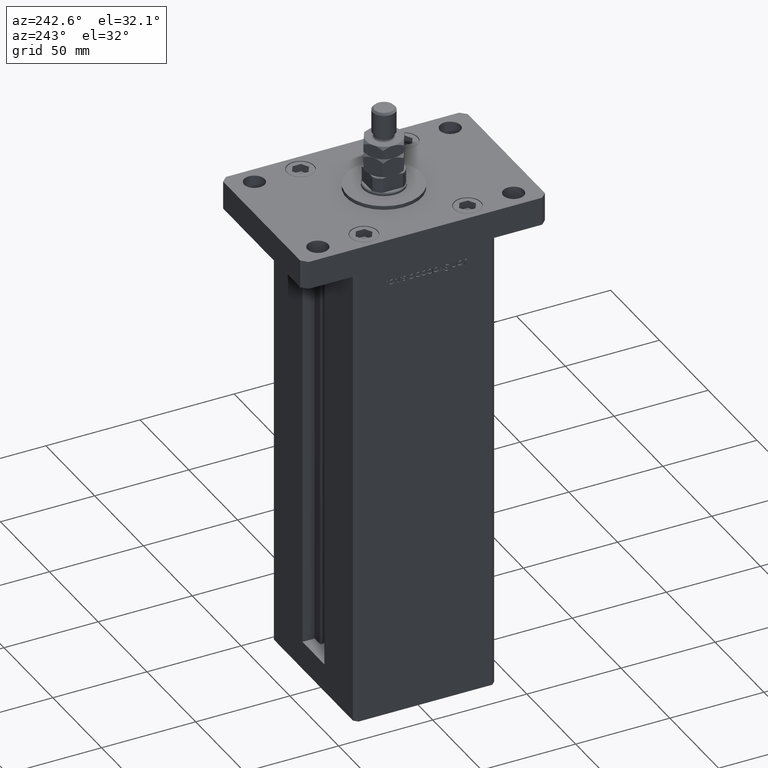
[diagram: clean part render]
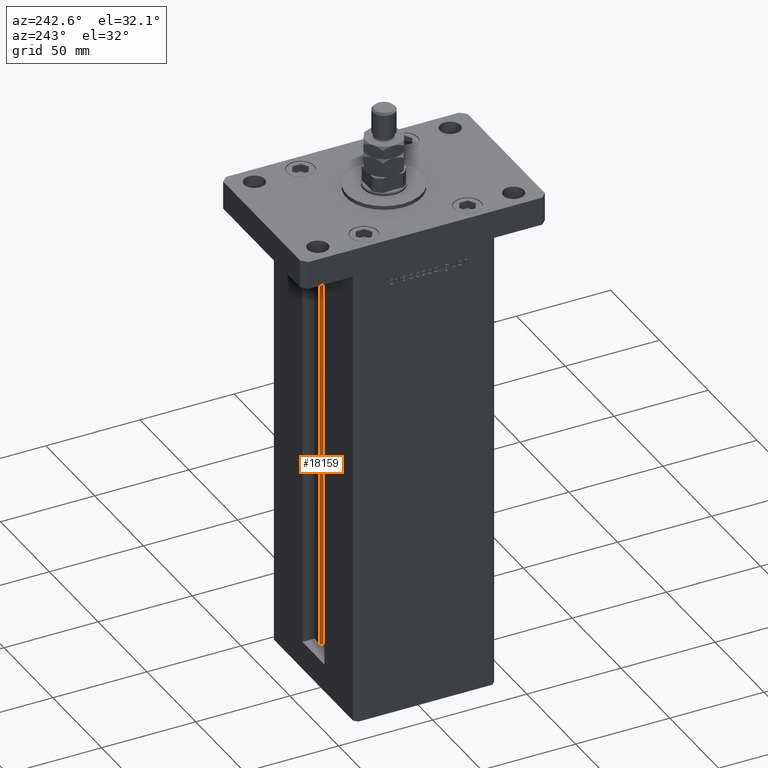
[diagram: same view with one face highlighted and labeled with its STEP entity id]
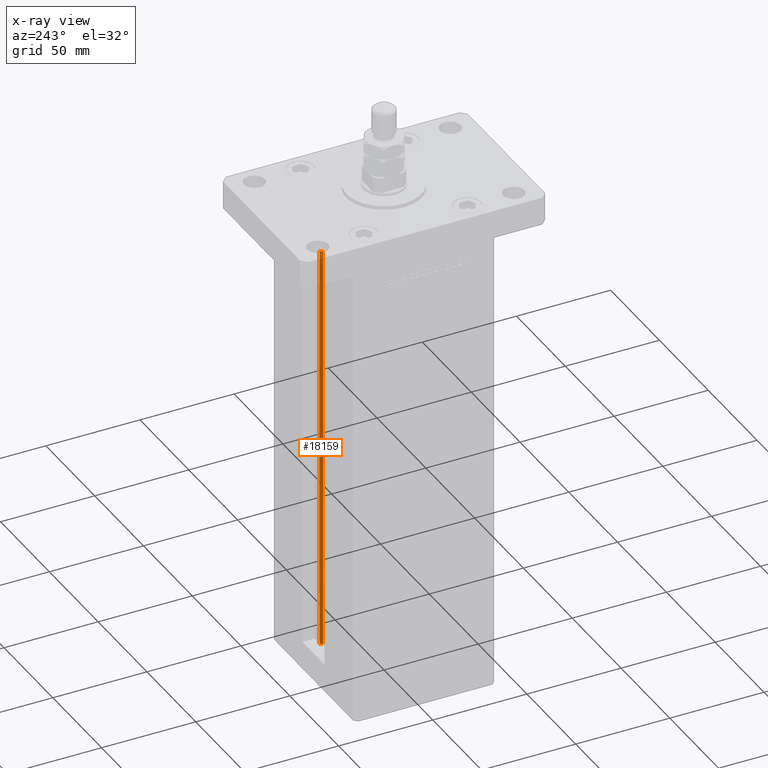
[diagram: x-ray of the same camera — body ghosted, the highlighted face saturated]
A machine part, auxiliary view. The second image highlights one B-rep face of the part: STEP entity #18159.
The next image is the same camera in x-ray: the body ghosted, the highlighted face saturated — about 9% of this face is hidden behind the body in this view.
In plain terms, the highlighted cylindrical surface (edge-blend (fillet) strip) has radius 0.9333 mm, axis along (0, 0, 1).
Its self-contained STEP definition (entity closure, byte-faithful):
#4753 = CARTESIAN_POINT ( 'NONE',  ( 6.183333333333999704, 30.99999999999999289, 218.5000000000000000 ) ) ;
#9036 = DIRECTION ( 'NONE',  ( 1.000000000000000000, 0.000000000000000000, 0.000000000000000000 ) ) ;
#9155 = VERTEX_POINT ( 'NONE', #4753 ) ;
#10059 = CIRCLE ( 'NONE', #33246, 0.9333333333340015914 ) ;
#12985 = FACE_OUTER_BOUND ( 'NONE', #33574, .T. ) ;
#13000 = DIRECTION ( 'NONE',  ( -0.000000000000000000, -0.000000000000000000, 1.000000000000000000 ) ) ;
#13753 = ORIENTED_EDGE ( 'NONE', *, *, #16031, .T. ) ;
#14898 = CARTESIAN_POINT ( 'NONE',  ( 5.375042956467944499, 29.59999999999899245, 218.5000000000000000 ) ) ;
#16031 = EDGE_CURVE ( 'NONE', #49284, #17561, #25077, .T. ) ;
#16146 = ORIENTED_EDGE ( 'NONE', *, *, #18964, .F. ) ;
#17561 = VERTEX_POINT ( 'NONE', #14898 ) ;
#18159 = ADVANCED_FACE ( 'NONE', ( #12985 ), #29987, .T. ) ;
#18964 = EDGE_CURVE ( 'NONE', #38871, #9155, #30554, .T. ) ;
#20906 = DIRECTION ( 'NONE',  ( -0.000000000000000000, -0.000000000000000000, 1.000000000000000000 ) ) ;
#21603 = DIRECTION ( 'NONE',  ( 0.000000000000000000, 0.000000000000000000, -1.000000000000000000 ) ) ;
#25077 = LINE ( 'NONE', #42077, #25746 ) ;
#25738 = ORIENTED_EDGE ( 'NONE', *, *, #42982, .T. ) ;
#25746 = VECTOR ( 'NONE', #20906, 1000.000000000000000 ) ;
#25808 = DIRECTION ( 'NONE',  ( 1.000000000000000000, 0.000000000000000000, 0.000000000000000000 ) ) ;
#26087 = CARTESIAN_POINT ( 'NONE',  ( 6.183333333333999704, 30.06666666666599141, 0.000000000000000000 ) ) ;
#26581 = VECTOR ( 'NONE', #13000, 1000.000000000000000 ) ;
#28522 = AXIS2_PLACEMENT_3D ( 'NONE', #42821, #46988, #25808 ) ;
#29987 = CYLINDRICAL_SURFACE ( 'NONE', #28522, 0.9333333333340015914 ) ;
#30554 = LINE ( 'NONE', #43110, #26581 ) ;
#30779 = CARTESIAN_POINT ( 'NONE',  ( 6.183333333333999704, 30.06666666666599141, 218.5000000000000000 ) ) ;
#32900 = CARTESIAN_POINT ( 'NONE',  ( 5.375042956467943611, 29.59999999999899245, 0.000000000000000000 ) ) ;
#33246 = AXIS2_PLACEMENT_3D ( 'NONE', #26087, #51746, #46986 ) ;
#33574 = EDGE_LOOP ( 'NONE', ( #16146, #37153, #13753, #25738 ) ) ;
#37153 = ORIENTED_EDGE ( 'NONE', *, *, #54780, .F. ) ;
#38871 = VERTEX_POINT ( 'NONE', #39587 ) ;
#39587 = CARTESIAN_POINT ( 'NONE',  ( 6.183333333333999704, 30.99999999999999289, 0.000000000000000000 ) ) ;
#41007 = CIRCLE ( 'NONE', #49954, 0.9333333333340015914 ) ;
#42077 = CARTESIAN_POINT ( 'NONE',  ( 5.375042956467943611, 29.59999999999899245, 0.000000000000000000 ) ) ;
#42821 = CARTESIAN_POINT ( 'NONE',  ( 6.183333333333999704, 30.06666666666599141, 0.000000000000000000 ) ) ;
#42982 = EDGE_CURVE ( 'NONE', #17561, #9155, #41007, .T. ) ;
#43110 = CARTESIAN_POINT ( 'NONE',  ( 6.183333333333999704, 30.99999999999999289, 0.000000000000000000 ) ) ;
#46986 = DIRECTION ( 'NONE',  ( 1.000000000000000000, 0.000000000000000000, 0.000000000000000000 ) ) ;
#46988 = DIRECTION ( 'NONE',  ( -0.000000000000000000, -0.000000000000000000, 1.000000000000000000 ) ) ;
#49284 = VERTEX_POINT ( 'NONE', #32900 ) ;
#49954 = AXIS2_PLACEMENT_3D ( 'NONE', #30779, #21603, #9036 ) ;
#51746 = DIRECTION ( 'NONE',  ( -0.000000000000000000, -0.000000000000000000, -1.000000000000000000 ) ) ;
#54780 = EDGE_CURVE ( 'NONE', #49284, #38871, #10059, .T. ) ;